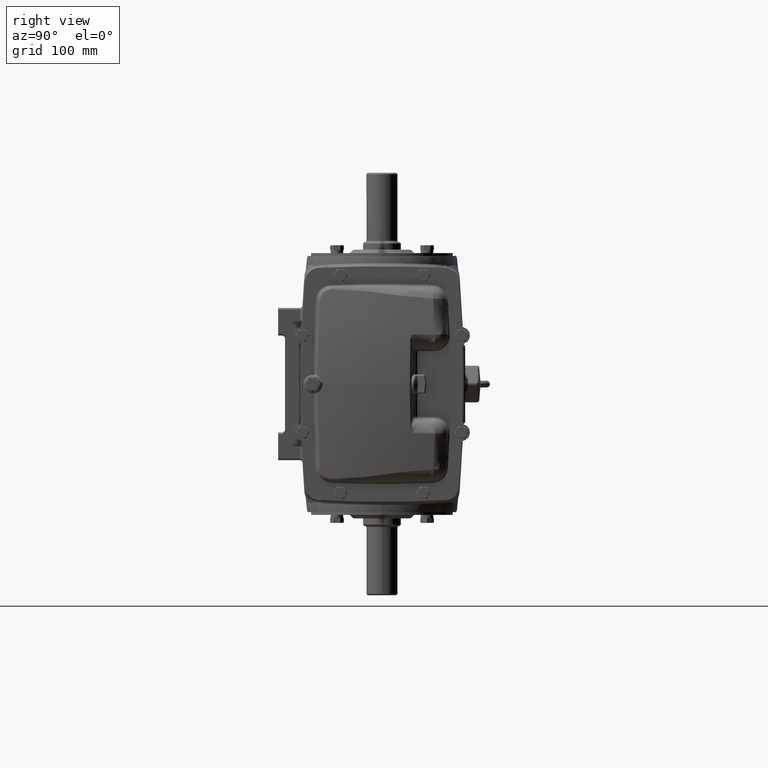
[diagram: clean part render]
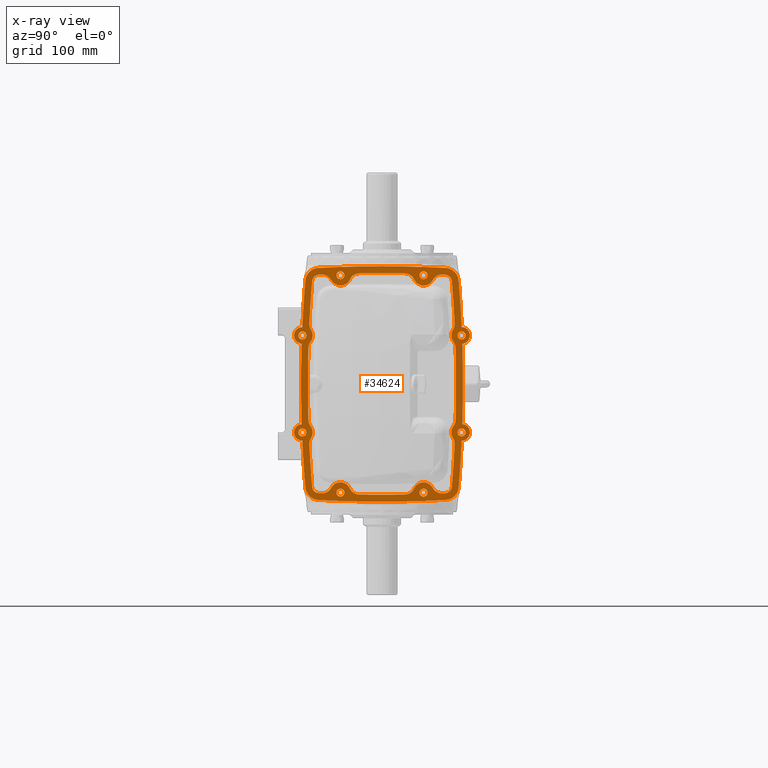
[diagram: x-ray — body ghosted, one internal face saturated and labeled with its STEP entity id]
A machine part, right view, then the same camera in x-ray: the body is ghosted and one INTERNAL B-rep face — a face not visible from any outside direction — is saturated and labeled: STEP entity #34624.
In plain terms, the highlighted planar face has unit normal (1, -0, 0).
Its self-contained STEP definition (entity closure, byte-faithful):
#27 = ORIENTED_EDGE ( 'NONE', *, *, #44993, .T. ) ;
#61 = CARTESIAN_POINT ( 'NONE',  ( -2.349973212028926284, -4.893640394660135229, -5.903390719813585541 ) ) ;
#141 = DIRECTION ( 'NONE',  ( 0.000000000000000000, 0.000000000000000000, 1.000000000000000000 ) ) ;
#180 = DIRECTION ( 'NONE',  ( -1.000000000000000000, 0.000000000000000000, 0.000000000000000000 ) ) ;
#468 = VERTEX_POINT ( 'NONE', #9747 ) ;
#662 = AXIS2_PLACEMENT_3D ( 'NONE', #1504, #26769, #46052 ) ;
#779 = DIRECTION ( 'NONE',  ( 0.000000000000000000, 0.000000000000000000, -1.000000000000000000 ) ) ;
#827 = DIRECTION ( 'NONE',  ( -1.000000000000000000, 0.000000000000000000, 0.000000000000000000 ) ) ;
#989 = DIRECTION ( 'NONE',  ( 0.000000000000000000, 0.000000000000000000, 1.000000000000000000 ) ) ;
#1076 = ORIENTED_EDGE ( 'NONE', *, *, #40332, .F. ) ;
#1139 = CARTESIAN_POINT ( 'NONE',  ( -2.349973212028926284, -12.30458259007020949, -2.755905511811023612 ) ) ;
#1306 = ORIENTED_EDGE ( 'NONE', *, *, #52176, .F. ) ;
#1442 = DIRECTION ( 'NONE',  ( 0.000000000000000000, 0.000000000000000000, -1.000000000000000000 ) ) ;
#1504 = CARTESIAN_POINT ( 'NONE',  ( -2.349973212028926284, -12.30458259007020949, 2.755905511811023612 ) ) ;
#1506 = CARTESIAN_POINT ( 'NONE',  ( -2.349973212028926284, -4.179633298406574937, 6.207335136765494532 ) ) ;
#1520 = CARTESIAN_POINT ( 'NONE',  ( -2.349973212028926284, -3.249464479833987340, 2.982283464566929165 ) ) ;
#1651 = VERTEX_POINT ( 'NONE', #9718 ) ;
#1666 = CIRCLE ( 'NONE', #14790, 0.7874015748031503170 ) ;
#1885 = DIRECTION ( 'NONE',  ( -1.000000000000000000, 0.000000000000000000, 0.000000000000000000 ) ) ;
#2229 = EDGE_LOOP ( 'NONE', ( #47946, #42956 ) ) ;
#2242 = FACE_BOUND ( 'NONE', #40239, .T. ) ;
#2355 = ORIENTED_EDGE ( 'NONE', *, *, #5531, .T. ) ;
#2405 = EDGE_CURVE ( 'NONE', #468, #48812, #33304, .T. ) ;
#2409 = DIRECTION ( 'NONE',  ( 0.000000000000000000, 0.000000000000000000, 1.000000000000000000 ) ) ;
#2502 = CARTESIAN_POINT ( 'NONE',  ( -2.349973212028926284, -6.492083706790011455, -5.696847126488341573 ) ) ;
#2506 = DIRECTION ( 'NONE',  ( 0.000000000000000000, 0.000000000000000000, -1.000000000000000000 ) ) ;
#2764 = DIRECTION ( 'NONE',  ( -1.000000000000000000, 0.000000000000000000, 0.000000000000000000 ) ) ;
#2775 = EDGE_CURVE ( 'NONE', #20836, #7420, #20182, .T. ) ;
#2889 = CARTESIAN_POINT ( 'NONE',  ( -2.349973212028926284, -4.159536146247139854, 6.600522642258368933 ) ) ;
#3084 = CARTESIAN_POINT ( 'NONE',  ( -2.349973212028926284, -7.777023534952098416, 64.17322834645669616 ) ) ;
#3294 = DIRECTION ( 'NONE',  ( 0.000000000000000000, 0.000000000000000000, 1.000000000000000000 ) ) ;
#3302 = AXIS2_PLACEMENT_3D ( 'NONE', #18930, #18019, #22465 ) ;
#3338 = ORIENTED_EDGE ( 'NONE', *, *, #19343, .T. ) ;
#3396 = EDGE_CURVE ( 'NONE', #45684, #9893, #26356, .T. ) ;
#3464 = CARTESIAN_POINT ( 'NONE',  ( -2.349973212028926284, -5.414818810542649352, -5.954724409448820310 ) ) ;
#3579 = DIRECTION ( 'NONE',  ( 0.000000000000000000, 0.000000000000000000, -1.000000000000000000 ) ) ;
#3598 = CARTESIAN_POINT ( 'NONE',  ( -2.349973212028926284, -3.249464479833987340, -2.755905511811023612 ) ) ;
#3810 = EDGE_CURVE ( 'NONE', #468, #29068, #58837, .T. ) ;
#3860 = DIRECTION ( 'NONE',  ( 0.000000000000000000, 0.000000000000000000, 1.000000000000000000 ) ) ;
#3912 = CARTESIAN_POINT ( 'NONE',  ( -2.349973212028926284, -12.30458259007020949, -2.982283464566929165 ) ) ;
#4021 = CARTESIAN_POINT ( 'NONE',  ( -2.349973212028926284, -10.13922825936154659, -6.181102362204723200 ) ) ;
#4058 = DIRECTION ( 'NONE',  ( 0.000000000000000000, 0.000000000000000000, -1.000000000000000000 ) ) ;
#4065 = CARTESIAN_POINT ( 'NONE',  ( -2.349973212028926284, -9.072822009549350142, 6.287298468513228933 ) ) ;
#4260 = DIRECTION ( 'NONE',  ( 0.000000000000000000, 0.000000000000000000, 1.000000000000000000 ) ) ;
#4369 = CARTESIAN_POINT ( 'NONE',  ( -2.349973212028926284, -3.249464479833987340, 2.755905511811023612 ) ) ;
#4414 = CIRCLE ( 'NONE', #20529, 0.5905511811023621549 ) ;
#4541 = EDGE_CURVE ( 'NONE', #52521, #16947, #60221, .T. ) ;
#4584 = DIRECTION ( 'NONE',  ( -1.000000000000000000, 0.000000000000000000, 0.000000000000000000 ) ) ;
#4640 = CARTESIAN_POINT ( 'NONE',  ( -2.349973212028926284, -11.74666007778795063, 5.846811382010109526 ) ) ;
#5025 = EDGE_CURVE ( 'NONE', #51042, #24903, #28933, .T. ) ;
#5028 = DIRECTION ( 'NONE',  ( -1.000000000000000000, 0.000000000000000000, 0.000000000000000000 ) ) ;
#5073 = CARTESIAN_POINT ( 'NONE',  ( -2.349973212028926284, -5.414818810542649352, -6.181102362204725864 ) ) ;
#5120 = DIRECTION ( 'NONE',  ( 0.000000000000000000, 0.000000000000000000, 1.000000000000000000 ) ) ;
#5174 = AXIS2_PLACEMENT_3D ( 'NONE', #18594, #42669, #37895 ) ;
#5232 = AXIS2_PLACEMENT_3D ( 'NONE', #23520, #28273, #47571 ) ;
#5252 = CARTESIAN_POINT ( 'NONE',  ( -2.349973212028926284, -10.13922825936154659, 6.181102362204723200 ) ) ;
#5340 = ORIENTED_EDGE ( 'NONE', *, *, #3396, .T. ) ;
#5449 = CARTESIAN_POINT ( 'NONE',  ( -2.349973212028926284, -74.03686605463714443, 0.000000000000000000 ) ) ;
#5531 = EDGE_CURVE ( 'NONE', #45166, #46570, #60264, .T. ) ;
#5706 = ORIENTED_EDGE ( 'NONE', *, *, #52638, .T. ) ;
#5742 = AXIS2_PLACEMENT_3D ( 'NONE', #49945, #25911, #41383 ) ;
#5805 = CIRCLE ( 'NONE', #21804, 0.7874015748031503170 ) ;
#5810 = CARTESIAN_POINT ( 'NONE',  ( -2.349973212028926284, -3.249464479833987340, 2.755905511811023612 ) ) ;
#5835 = DIRECTION ( 'NONE',  ( -1.000000000000000000, 0.000000000000000000, 0.000000000000000000 ) ) ;
#5837 = DIRECTION ( 'NONE',  ( 0.000000000000000000, 0.000000000000000000, 1.000000000000000000 ) ) ;
#5896 = AXIS2_PLACEMENT_3D ( 'NONE', #47261, #41883, #51385 ) ;
#6010 = DIRECTION ( 'NONE',  ( 0.000000000000000000, 0.000000000000000000, 1.000000000000000000 ) ) ;
#6034 = FACE_BOUND ( 'NONE', #50445, .T. ) ;
#6074 = DIRECTION ( 'NONE',  ( 0.000000000000000000, 0.000000000000000000, -1.000000000000000000 ) ) ;
#6168 = AXIS2_PLACEMENT_3D ( 'NONE', #8745, #52686, #38129 ) ;
#6298 = VERTEX_POINT ( 'NONE', #41831 ) ;
#6369 = EDGE_CURVE ( 'NONE', #16907, #23427, #10834, .T. ) ;
#6392 = CIRCLE ( 'NONE', #44763, 70.47244094488188182 ) ;
#6402 = DIRECTION ( 'NONE',  ( 1.000000000000000000, -0.000000000000000000, -0.000000000000000000 ) ) ;
#6451 = DIRECTION ( 'NONE',  ( 0.000000000000000000, 0.000000000000000000, -1.000000000000000000 ) ) ;
#6487 = CARTESIAN_POINT ( 'NONE',  ( -2.349973212028926284, -5.953451258666329515, 5.938974744346534607 ) ) ;
#6614 = AXIS2_PLACEMENT_3D ( 'NONE', #55607, #46442, #50869 ) ;
#6747 = DIRECTION ( 'NONE',  ( -1.000000000000000000, 0.000000000000000000, 0.000000000000000000 ) ) ;
#6873 = DIRECTION ( 'NONE',  ( 0.000000000000000000, 0.000000000000000000, 1.000000000000000000 ) ) ;
#6962 = DIRECTION ( 'NONE',  ( 1.000000000000000000, -0.000000000000000000, -0.000000000000000000 ) ) ;
#7041 = VERTEX_POINT ( 'NONE', #32157 ) ;
#7196 = DIRECTION ( 'NONE',  ( 0.000000000000000000, 0.000000000000000000, -1.000000000000000000 ) ) ;
#7272 = CARTESIAN_POINT ( 'NONE',  ( -2.349973212028926284, -5.414818810542649352, 6.181102362204725864 ) ) ;
#7420 = VERTEX_POINT ( 'NONE', #39212 ) ;
#7454 = CARTESIAN_POINT ( 'NONE',  ( -2.349973212028926284, -3.249464479833987340, -2.755905511811023612 ) ) ;
#7490 = DIRECTION ( 'NONE',  ( 0.000000000000000000, 0.000000000000000000, -1.000000000000000000 ) ) ;
#7516 = DIRECTION ( 'NONE',  ( -1.000000000000000000, 0.000000000000000000, 0.000000000000000000 ) ) ;
#7573 = CARTESIAN_POINT ( 'NONE',  ( -2.349973212028926284, -3.249464479833987340, -2.755905511811023612 ) ) ;
#7574 = ORIENTED_EDGE ( 'NONE', *, *, #12714, .T. ) ;
#7605 = AXIS2_PLACEMENT_3D ( 'NONE', #35404, #36042, #34788 ) ;
#7942 = ORIENTED_EDGE ( 'NONE', *, *, #44714, .T. ) ;
#7967 = CARTESIAN_POINT ( 'NONE',  ( -2.349973212028926284, -5.414818810542649352, -6.181102362204725864 ) ) ;
#8119 = DIRECTION ( 'NONE',  ( -1.000000000000000000, 0.000000000000000000, 0.000000000000000000 ) ) ;
#8181 = AXIS2_PLACEMENT_3D ( 'NONE', #12293, #26839, #2506 ) ;
#8198 = CIRCLE ( 'NONE', #5174, 0.3937007874015751585 ) ;
#8315 = CARTESIAN_POINT ( 'NONE',  ( -2.349973212028926284, -10.13922825936154659, -5.954724409448817646 ) ) ;
#8317 = EDGE_CURVE ( 'NONE', #9893, #45166, #43287, .T. ) ;
#8665 = CARTESIAN_POINT ( 'NONE',  ( -2.349973212028926284, -3.207583018110084616, 2.285324605308475476 ) ) ;
#8745 = CARTESIAN_POINT ( 'NONE',  ( -2.349973212028926284, -74.03686605463714443, 0.000000000000000000 ) ) ;
#8784 = CARTESIAN_POINT ( 'NONE',  ( -2.349973212028926284, -11.36945102235517169, -2.034426654831562598 ) ) ;
#8921 = VERTEX_POINT ( 'NONE', #41609 ) ;
#9001 = EDGE_CURVE ( 'NONE', #34047, #33876, #62509, .T. ) ;
#9118 = CIRCLE ( 'NONE', #44474, 0.2263779527559057203 ) ;
#9128 = CARTESIAN_POINT ( 'NONE',  ( -2.349973212028926284, -3.249464479833987340, -2.755905511811023612 ) ) ;
#9132 = DIRECTION ( 'NONE',  ( 0.000000000000000000, 0.000000000000000000, 1.000000000000000000 ) ) ;
#9190 = DIRECTION ( 'NONE',  ( 0.000000000000000000, 0.000000000000000000, -1.000000000000000000 ) ) ;
#9202 = ORIENTED_EDGE ( 'NONE', *, *, #27833, .F. ) ;
#9364 = EDGE_CURVE ( 'NONE', #30873, #19890, #26824, .T. ) ;
#9395 = DIRECTION ( 'NONE',  ( 0.000000000000000000, 0.000000000000000000, -1.000000000000000000 ) ) ;
#9627 = DIRECTION ( 'NONE',  ( 0.000000000000000000, 0.000000000000000000, 1.000000000000000000 ) ) ;
#9677 = AXIS2_PLACEMENT_3D ( 'NONE', #43075, #38919, #5120 ) ;
#9718 = CARTESIAN_POINT ( 'NONE',  ( -2.349973212028926284, -12.34646405179410600, -2.285324605308472812 ) ) ;
#9747 = CARTESIAN_POINT ( 'NONE',  ( -2.349973212028926284, -3.594295174249679370, 2.051618992759705939 ) ) ;
#9814 = ORIENTED_EDGE ( 'NONE', *, *, #33409, .T. ) ;
#9839 = EDGE_CURVE ( 'NONE', #17565, #27040, #45974, .T. ) ;
#9893 = VERTEX_POINT ( 'NONE', #44673 ) ;
#9901 = ORIENTED_EDGE ( 'NONE', *, *, #37198, .F. ) ;
#10095 = VERTEX_POINT ( 'NONE', #54302 ) ;
#10115 = CARTESIAN_POINT ( 'NONE',  ( -2.349973212028926284, -4.184596047549023368, 2.034426654831557268 ) ) ;
#10123 = VERTEX_POINT ( 'NONE', #1520 ) ;
#10131 = DIRECTION ( 'NONE',  ( 1.000000000000000000, -0.000000000000000000, -0.000000000000000000 ) ) ;
#10365 = EDGE_CURVE ( 'NONE', #58109, #42207, #52072, .T. ) ;
#10393 = AXIS2_PLACEMENT_3D ( 'NONE', #19394, #180, #32723 ) ;
#10603 = EDGE_CURVE ( 'NONE', #50341, #59695, #46024, .T. ) ;
#10770 = PLANE ( 'NONE',  #7605 ) ;
#10834 = CIRCLE ( 'NONE', #18876, 0.2263779527559057203 ) ;
#10873 = CARTESIAN_POINT ( 'NONE',  ( -2.349973212028926284, -4.199730450566083739, 5.814147631272645000 ) ) ;
#10926 = ORIENTED_EDGE ( 'NONE', *, *, #32286, .F. ) ;
#10981 = ORIENTED_EDGE ( 'NONE', *, *, #57846, .F. ) ;
#11061 = ORIENTED_EDGE ( 'NONE', *, *, #11146, .T. ) ;
#11116 = DIRECTION ( 'NONE',  ( 1.000000000000000000, -0.000000000000000000, -0.000000000000000000 ) ) ;
#11146 = EDGE_CURVE ( 'NONE', #33876, #50341, #23840, .T. ) ;
#11368 = DIRECTION ( 'NONE',  ( 0.000000000000000000, 0.000000000000000000, -1.000000000000000000 ) ) ;
#11388 = DIRECTION ( 'NONE',  ( 0.000000000000000000, 0.000000000000000000, -1.000000000000000000 ) ) ;
#11431 = CARTESIAN_POINT ( 'NONE',  ( -2.349973212028926284, -10.13922825936154659, -6.181102362204723200 ) ) ;
#11472 = CIRCLE ( 'NONE', #19533, 70.86614173228346658 ) ;
#11473 = DIRECTION ( 'NONE',  ( 0.000000000000000000, 0.000000000000000000, 1.000000000000000000 ) ) ;
#11516 = VERTEX_POINT ( 'NONE', #50151 ) ;
#11529 = AXIS2_PLACEMENT_3D ( 'NONE', #52952, #14694, #9627 ) ;
#11615 = AXIS2_PLACEMENT_3D ( 'NONE', #7573, #32532, #20916 ) ;
#11638 = CARTESIAN_POINT ( 'NONE',  ( -2.349973212028926284, -9.600595811237866428, -5.938974744346532830 ) ) ;
#11948 = EDGE_CURVE ( 'NONE', #57110, #36908, #1666, .T. ) ;
#12195 = DIRECTION ( 'NONE',  ( 0.000000000000000000, 0.000000000000000000, 1.000000000000000000 ) ) ;
#12293 = CARTESIAN_POINT ( 'NONE',  ( -2.349973212028926284, -12.30458259007020949, 2.755905511811023612 ) ) ;
#12352 = CIRCLE ( 'NONE', #45706, 0.2263779527559057203 ) ;
#12642 = ORIENTED_EDGE ( 'NONE', *, *, #41563, .T. ) ;
#12650 = AXIS2_PLACEMENT_3D ( 'NONE', #12859, #2764, #60606 ) ;
#12714 = EDGE_CURVE ( 'NONE', #10095, #33719, #5805, .T. ) ;
#12847 = CIRCLE ( 'NONE', #37081, 0.5905511811023615998 ) ;
#12859 = CARTESIAN_POINT ( 'NONE',  ( -2.349973212028926284, -10.13922825936154659, 6.181102362204723200 ) ) ;
#12925 = CIRCLE ( 'NONE', #44243, 70.86614173228346658 ) ;
#13139 = AXIS2_PLACEMENT_3D ( 'NONE', #10115, #49329, #25286 ) ;
#13418 = DIRECTION ( 'NONE',  ( 0.000000000000000000, 0.000000000000000000, -1.000000000000000000 ) ) ;
#13641 = DIRECTION ( 'NONE',  ( 1.000000000000000000, -0.000000000000000000, -0.000000000000000000 ) ) ;
#13750 = CARTESIAN_POINT ( 'NONE',  ( -2.349973212028926284, -11.39451092365704632, 6.600522642258369821 ) ) ;
#13837 = AXIS2_PLACEMENT_3D ( 'NONE', #7967, #59833, #3860 ) ;
#13871 = ORIENTED_EDGE ( 'NONE', *, *, #46717, .T. ) ;
#13895 = DIRECTION ( 'NONE',  ( 0.000000000000000000, 0.000000000000000000, 1.000000000000000000 ) ) ;
#13927 = CIRCLE ( 'NONE', #35111, 0.5905511811023621549 ) ;
#14161 = CARTESIAN_POINT ( 'NONE',  ( -2.349973212028926284, -5.414818810542649352, -6.407480314960631418 ) ) ;
#14316 = ORIENTED_EDGE ( 'NONE', *, *, #32725, .F. ) ;
#14320 = CIRCLE ( 'NONE', #39520, 0.2263779527559057203 ) ;
#14455 = EDGE_CURVE ( 'NONE', #38587, #46944, #24922, .T. ) ;
#14535 = CARTESIAN_POINT ( 'NONE',  ( -2.349973212028926284, 58.48281898473294405, 0.000000000000000000 ) ) ;
#14694 = DIRECTION ( 'NONE',  ( -1.000000000000000000, 0.000000000000000000, 0.000000000000000000 ) ) ;
#14790 = AXIS2_PLACEMENT_3D ( 'NONE', #10873, #15916, #6451 ) ;
#14839 = CARTESIAN_POINT ( 'NONE',  ( -2.349973212028926284, -12.34646405179410600, 2.285324605308472812 ) ) ;
#15344 = DIRECTION ( 'NONE',  ( 0.000000000000000000, 0.000000000000000000, 1.000000000000000000 ) ) ;
#15611 = ORIENTED_EDGE ( 'NONE', *, *, #16215, .F. ) ;
#15656 = DIRECTION ( 'NONE',  ( 0.000000000000000000, 0.000000000000000000, -1.000000000000000000 ) ) ;
#15757 = AXIS2_PLACEMENT_3D ( 'NONE', #27758, #40722, #50541 ) ;
#15819 = VERTEX_POINT ( 'NONE', #39752 ) ;
#15916 = DIRECTION ( 'NONE',  ( 1.000000000000000000, -0.000000000000000000, -0.000000000000000000 ) ) ;
#16023 = CARTESIAN_POINT ( 'NONE',  ( -2.349973212028926284, -3.249464479833987340, -2.982283464566929165 ) ) ;
#16031 = VERTEX_POINT ( 'NONE', #4640 ) ;
#16120 = FACE_BOUND ( 'NONE', #27551, .T. ) ;
#16151 = DIRECTION ( 'NONE',  ( 1.000000000000000000, -0.000000000000000000, -0.000000000000000000 ) ) ;
#16215 = EDGE_CURVE ( 'NONE', #61002, #21398, #19993, .T. ) ;
#16268 = EDGE_CURVE ( 'NONE', #32166, #34047, #54350, .T. ) ;
#16320 = CARTESIAN_POINT ( 'NONE',  ( -2.349973212028926284, -12.13900353623778550, 5.879475132747616684 ) ) ;
#16433 = AXIS2_PLACEMENT_3D ( 'NONE', #25381, #44049, #54458 ) ;
#16501 = CARTESIAN_POINT ( 'NONE',  ( -2.349973212028926284, -11.83701680621269148, -2.395166083321293993 ) ) ;
#16520 = CARTESIAN_POINT ( 'NONE',  ( -2.349973212028926284, -7.777023534952098416, 64.17322834645669616 ) ) ;
#16738 = DIRECTION ( 'NONE',  ( 1.000000000000000000, -0.000000000000000000, -0.000000000000000000 ) ) ;
#16830 = EDGE_CURVE ( 'NONE', #57419, #56349, #62485, .T. ) ;
#16859 = EDGE_LOOP ( 'NONE', ( #27, #38190 ) ) ;
#16907 = VERTEX_POINT ( 'NONE', #16023 ) ;
#16920 = CARTESIAN_POINT ( 'NONE',  ( -2.349973212028926284, -9.600595811237866428, 5.938974744346532830 ) ) ;
#16947 = VERTEX_POINT ( 'NONE', #27280 ) ;
#16994 = EDGE_CURVE ( 'NONE', #15819, #32166, #18009, .T. ) ;
#17015 = DIRECTION ( 'NONE',  ( 0.000000000000000000, 0.000000000000000000, 1.000000000000000000 ) ) ;
#17146 = CARTESIAN_POINT ( 'NONE',  ( -2.349973212028926284, -4.237857979002681574, 3.402497408455763317 ) ) ;
#17265 = CIRCLE ( 'NONE', #52623, 0.5905511811023615998 ) ;
#17360 = CARTESIAN_POINT ( 'NONE',  ( -2.349973212028926284, -11.81038584048586415, -3.079201460133389912 ) ) ;
#17373 = DIRECTION ( 'NONE',  ( 0.000000000000000000, 0.000000000000000000, -1.000000000000000000 ) ) ;
#17565 = VERTEX_POINT ( 'NONE', #44538 ) ;
#18009 = CIRCLE ( 'NONE', #61457, 0.5905511811023621549 ) ;
#18019 = DIRECTION ( 'NONE',  ( -1.000000000000000000, 0.000000000000000000, 0.000000000000000000 ) ) ;
#18170 = CIRCLE ( 'NONE', #21193, 70.86614173228345237 ) ;
#18351 = CARTESIAN_POINT ( 'NONE',  ( -2.349973212028926284, -7.777023534952098416, -64.17322834645669616 ) ) ;
#18455 = DIRECTION ( 'NONE',  ( 0.000000000000000000, 0.000000000000000000, -1.000000000000000000 ) ) ;
#18594 = CARTESIAN_POINT ( 'NONE',  ( -2.349973212028926284, -11.35431661933811398, 5.814147631272622796 ) ) ;
#18626 = CARTESIAN_POINT ( 'NONE',  ( -2.349973212028926284, -10.13922825936154659, -6.181102362204723200 ) ) ;
#18655 = DIRECTION ( 'NONE',  ( 0.000000000000000000, 0.000000000000000000, 1.000000000000000000 ) ) ;
#18671 = DIRECTION ( 'NONE',  ( -1.000000000000000000, 0.000000000000000000, 0.000000000000000000 ) ) ;
#18751 = CARTESIAN_POINT ( 'NONE',  ( -2.349973212028926284, -74.03686605463714443, 0.000000000000000000 ) ) ;
#18820 = CARTESIAN_POINT ( 'NONE',  ( -2.349973212028926284, -4.343691036049387222, -6.215528999314371639 ) ) ;
#18876 = AXIS2_PLACEMENT_3D ( 'NONE', #3598, #38314, #3294 ) ;
#18930 = CARTESIAN_POINT ( 'NONE',  ( -2.349973212028926284, -74.03686605463714443, 0.000000000000000000 ) ) ;
#19034 = AXIS2_PLACEMENT_3D ( 'NONE', #50816, #40047, #7490 ) ;
#19132 = DIRECTION ( 'NONE',  ( 0.000000000000000000, 0.000000000000000000, 1.000000000000000000 ) ) ;
#19293 = CARTESIAN_POINT ( 'NONE',  ( -2.349973212028926284, -3.244295782497976344, -3.228318182014460191 ) ) ;
#19343 = EDGE_CURVE ( 'NONE', #37320, #55618, #9118, .T. ) ;
#19394 = CARTESIAN_POINT ( 'NONE',  ( -2.349973212028926284, -4.184596047549023368, -2.034426654831557268 ) ) ;
#19533 = AXIS2_PLACEMENT_3D ( 'NONE', #35996, #59414, #17015 ) ;
#19746 = CARTESIAN_POINT ( 'NONE',  ( -2.349973212028926284, -7.777023534952098416, -64.17322834645669616 ) ) ;
#19890 = VERTEX_POINT ( 'NONE', #24032 ) ;
#19993 = CIRCLE ( 'NONE', #5896, 0.5905511811023583801 ) ;
#20063 = CARTESIAN_POINT ( 'NONE',  ( -2.349973212028926284, -11.21035603385481316, 6.215528999314378744 ) ) ;
#20068 = EDGE_CURVE ( 'NONE', #46944, #38587, #58643, .T. ) ;
#20166 = AXIS2_PLACEMENT_3D ( 'NONE', #18351, #61081, #9190 ) ;
#20182 = CIRCLE ( 'NONE', #26310, 70.47244094488186761 ) ;
#20207 = ORIENTED_EDGE ( 'NONE', *, *, #28930, .F. ) ;
#20529 = AXIS2_PLACEMENT_3D ( 'NONE', #22472, #28154, #28462 ) ;
#20575 = DIRECTION ( 'NONE',  ( 0.000000000000000000, 0.000000000000000000, -1.000000000000000000 ) ) ;
#20691 = DIRECTION ( 'NONE',  ( 1.000000000000000000, -0.000000000000000000, -0.000000000000000000 ) ) ;
#20779 = ORIENTED_EDGE ( 'NONE', *, *, #9839, .F. ) ;
#20836 = VERTEX_POINT ( 'NONE', #20063 ) ;
#20901 = DIRECTION ( 'NONE',  ( 0.000000000000000000, 0.000000000000000000, 1.000000000000000000 ) ) ;
#20916 = DIRECTION ( 'NONE',  ( 0.000000000000000000, 0.000000000000000000, 1.000000000000000000 ) ) ;
#20965 = DIRECTION ( 'NONE',  ( -1.000000000000000000, 0.000000000000000000, 0.000000000000000000 ) ) ;
#21149 = EDGE_CURVE ( 'NONE', #29477, #36105, #18170, .T. ) ;
#21193 = AXIS2_PLACEMENT_3D ( 'NONE', #55796, #37434, #13418 ) ;
#21398 = VERTEX_POINT ( 'NONE', #16501 ) ;
#21584 = CIRCLE ( 'NONE', #29687, 70.86614173228345237 ) ;
#21803 = ORIENTED_EDGE ( 'NONE', *, *, #16268, .T. ) ;
#21804 = AXIS2_PLACEMENT_3D ( 'NONE', #28003, #22936, #61209 ) ;
#21843 = DIRECTION ( 'NONE',  ( 1.000000000000000000, -0.000000000000000000, -0.000000000000000000 ) ) ;
#21911 = CARTESIAN_POINT ( 'NONE',  ( -2.349973212028926284, -11.74666007778795063, -5.846811382010109526 ) ) ;
#21998 = EDGE_CURVE ( 'NONE', #6298, #56681, #35421, .T. ) ;
#22465 = DIRECTION ( 'NONE',  ( 0.000000000000000000, 0.000000000000000000, 1.000000000000000000 ) ) ;
#22472 = CARTESIAN_POINT ( 'NONE',  ( -2.349973212028926284, -11.31618909090151348, -3.402497408455758876 ) ) ;
#22724 = CIRCLE ( 'NONE', #59061, 0.5905511811023583801 ) ;
#22817 = AXIS2_PLACEMENT_3D ( 'NONE', #25619, #6962, #11388 ) ;
#22844 = CARTESIAN_POINT ( 'NONE',  ( -2.349973212028926284, -6.481225060354839584, -6.287298468513228933 ) ) ;
#22936 = DIRECTION ( 'NONE',  ( -1.000000000000000000, 0.000000000000000000, 0.000000000000000000 ) ) ;
#23159 = CARTESIAN_POINT ( 'NONE',  ( -2.349973212028926284, -10.13922825936154659, 5.954724409448817646 ) ) ;
#23294 = CARTESIAN_POINT ( 'NONE',  ( -2.349973212028926284, -11.90603986337166376, -3.431250907682156903 ) ) ;
#23427 = VERTEX_POINT ( 'NONE', #27441 ) ;
#23520 = CARTESIAN_POINT ( 'NONE',  ( -2.349973212028926284, -4.199730450566057982, -5.814147631272622796 ) ) ;
#23572 = EDGE_CURVE ( 'NONE', #45012, #37311, #14320, .T. ) ;
#23840 = CIRCLE ( 'NONE', #22817, 70.47244094488186761 ) ;
#24032 = CARTESIAN_POINT ( 'NONE',  ( -2.349973212028926284, -10.66040667524405983, 5.903390719813582876 ) ) ;
#24049 = CIRCLE ( 'NONE', #62434, 0.5905511811023583801 ) ;
#24062 = ORIENTED_EDGE ( 'NONE', *, *, #59483, .F. ) ;
#24109 = AXIS2_PLACEMENT_3D ( 'NONE', #58393, #44163, #35590 ) ;
#24211 = DIRECTION ( 'NONE',  ( -1.000000000000000000, 0.000000000000000000, 0.000000000000000000 ) ) ;
#24283 = ORIENTED_EDGE ( 'NONE', *, *, #9364, .T. ) ;
#24314 = DIRECTION ( 'NONE',  ( 0.000000000000000000, 0.000000000000000000, -1.000000000000000000 ) ) ;
#24346 = DIRECTION ( 'NONE',  ( -1.000000000000000000, 0.000000000000000000, 0.000000000000000000 ) ) ;
#24647 = CIRCLE ( 'NONE', #47867, 0.5905511811023615998 ) ;
#24655 = CARTESIAN_POINT ( 'NONE',  ( -2.349973212028926284, -5.414818810542649352, 6.181102362204725864 ) ) ;
#24903 = VERTEX_POINT ( 'NONE', #14839 ) ;
#24922 = CIRCLE ( 'NONE', #13837, 0.2263779527559057203 ) ;
#25286 = DIRECTION ( 'NONE',  ( 0.000000000000000000, 0.000000000000000000, 1.000000000000000000 ) ) ;
#25365 = DIRECTION ( 'NONE',  ( 0.000000000000000000, 0.000000000000000000, 1.000000000000000000 ) ) ;
#25381 = CARTESIAN_POINT ( 'NONE',  ( -2.349973212028926284, -4.372461978777618441, -5.625679077422444330 ) ) ;
#25556 = ORIENTED_EDGE ( 'NONE', *, *, #39168, .F. ) ;
#25619 = CARTESIAN_POINT ( 'NONE',  ( -2.349973212028926284, -7.777023534952098416, -64.17322834645669616 ) ) ;
#25623 = FACE_BOUND ( 'NONE', #38504, .T. ) ;
#25766 = VERTEX_POINT ( 'NONE', #23294 ) ;
#25786 = EDGE_CURVE ( 'NONE', #8921, #46570, #37645, .T. ) ;
#25795 = CIRCLE ( 'NONE', #54046, 0.4724409448818896462 ) ;
#25797 = EDGE_CURVE ( 'NONE', #29068, #17565, #41711, .T. ) ;
#25911 = DIRECTION ( 'NONE',  ( 1.000000000000000000, -0.000000000000000000, -0.000000000000000000 ) ) ;
#25991 = CARTESIAN_POINT ( 'NONE',  ( -2.349973212028926284, 58.48281898473294405, 0.000000000000000000 ) ) ;
#26094 = VERTEX_POINT ( 'NONE', #8315 ) ;
#26107 = CARTESIAN_POINT ( 'NONE',  ( -2.349973212028926284, -12.30458259007020949, -2.755905511811023612 ) ) ;
#26186 = ORIENTED_EDGE ( 'NONE', *, *, #49493, .T. ) ;
#26197 = CARTESIAN_POINT ( 'NONE',  ( -2.349973212028926284, -11.21035603385481316, -6.215528999314378744 ) ) ;
#26260 = VERTEX_POINT ( 'NONE', #41434 ) ;
#26310 = AXIS2_PLACEMENT_3D ( 'NONE', #19746, #49184, #1442 ) ;
#26356 = CIRCLE ( 'NONE', #42521, 0.5905511811023621549 ) ;
#26437 = CIRCLE ( 'NONE', #31472, 70.47244094488186761 ) ;
#26520 = CIRCLE ( 'NONE', #40623, 0.2263779527559057203 ) ;
#26769 = DIRECTION ( 'NONE',  ( 1.000000000000000000, -0.000000000000000000, -0.000000000000000000 ) ) ;
#26824 = CIRCLE ( 'NONE', #12650, 0.5905511811023583801 ) ;
#26839 = DIRECTION ( 'NONE',  ( 1.000000000000000000, -0.000000000000000000, -0.000000000000000000 ) ) ;
#26922 = CIRCLE ( 'NONE', #46153, 70.86614173228346658 ) ;
#26968 = AXIS2_PLACEMENT_3D ( 'NONE', #4369, #5835, #4058 ) ;
#27040 = VERTEX_POINT ( 'NONE', #55448 ) ;
#27214 = CARTESIAN_POINT ( 'NONE',  ( -2.349973212028926284, -12.30458259007020949, 2.755905511811023612 ) ) ;
#27280 = CARTESIAN_POINT ( 'NONE',  ( -2.349973212028926284, -10.66040667524405983, -5.903390719813582876 ) ) ;
#27441 = CARTESIAN_POINT ( 'NONE',  ( -2.349973212028926284, -3.249464479833987340, -2.529527559055117614 ) ) ;
#27551 = EDGE_LOOP ( 'NONE', ( #59777, #34175 ) ) ;
#27758 = CARTESIAN_POINT ( 'NONE',  ( -2.349973212028926284, -11.18158509112657839, -5.625679077422441665 ) ) ;
#27772 = AXIS2_PLACEMENT_3D ( 'NONE', #50509, #32151, #7196 ) ;
#27833 = EDGE_CURVE ( 'NONE', #21398, #8921, #38511, .T. ) ;
#27866 = ORIENTED_EDGE ( 'NONE', *, *, #32982, .T. ) ;
#27900 = DIRECTION ( 'NONE',  ( 0.000000000000000000, 0.000000000000000000, -1.000000000000000000 ) ) ;
#27930 = DIRECTION ( 'NONE',  ( 1.000000000000000000, -0.000000000000000000, -0.000000000000000000 ) ) ;
#27947 = ORIENTED_EDGE ( 'NONE', *, *, #39756, .T. ) ;
#27976 = CARTESIAN_POINT ( 'NONE',  ( -2.349973212028926284, -5.414818810542649352, 6.181102362204725864 ) ) ;
#28003 = CARTESIAN_POINT ( 'NONE',  ( -2.349973212028926284, -4.199730450566083739, -5.814147631272645000 ) ) ;
#28054 = VERTEX_POINT ( 'NONE', #16320 ) ;
#28154 = DIRECTION ( 'NONE',  ( -1.000000000000000000, 0.000000000000000000, 0.000000000000000000 ) ) ;
#28208 = VERTEX_POINT ( 'NONE', #39567 ) ;
#28273 = DIRECTION ( 'NONE',  ( -1.000000000000000000, 0.000000000000000000, 0.000000000000000000 ) ) ;
#28462 = DIRECTION ( 'NONE',  ( 0.000000000000000000, 0.000000000000000000, -1.000000000000000000 ) ) ;
#28580 = AXIS2_PLACEMENT_3D ( 'NONE', #62437, #4584, #28605 ) ;
#28605 = DIRECTION ( 'NONE',  ( 0.000000000000000000, 0.000000000000000000, 1.000000000000000000 ) ) ;
#28654 = CARTESIAN_POINT ( 'NONE',  ( -2.349973212028926284, -11.37441377149757393, -6.207335136765503414 ) ) ;
#28930 = EDGE_CURVE ( 'NONE', #11516, #43345, #53597, .T. ) ;
#28933 = CIRCLE ( 'NONE', #662, 0.4724409448818896462 ) ;
#29024 = VERTEX_POINT ( 'NONE', #39207 ) ;
#29055 = CARTESIAN_POINT ( 'NONE',  ( -2.349973212028926284, -7.777023534952098416, 64.17322834645669616 ) ) ;
#29068 = VERTEX_POINT ( 'NONE', #44609 ) ;
#29098 = ORIENTED_EDGE ( 'NONE', *, *, #16994, .T. ) ;
#29233 = DIRECTION ( 'NONE',  ( 0.000000000000000000, 0.000000000000000000, 1.000000000000000000 ) ) ;
#29327 = EDGE_CURVE ( 'NONE', #7420, #16031, #8198, .T. ) ;
#29367 = AXIS2_PLACEMENT_3D ( 'NONE', #4021, #24211, #19132 ) ;
#29429 = CARTESIAN_POINT ( 'NONE',  ( -2.349973212028926284, 58.48281898473294405, 0.000000000000000000 ) ) ;
#29477 = VERTEX_POINT ( 'NONE', #42974 ) ;
#29610 = CARTESIAN_POINT ( 'NONE',  ( -2.349973212028926284, -11.18158509112657839, 5.625679077422441665 ) ) ;
#29651 = EDGE_CURVE ( 'NONE', #59137, #7041, #44577, .T. ) ;
#29687 = AXIS2_PLACEMENT_3D ( 'NONE', #39938, #20965, #5837 ) ;
#29900 = CIRCLE ( 'NONE', #46072, 70.86614173228346658 ) ;
#30120 = AXIS2_PLACEMENT_3D ( 'NONE', #29055, #5028, #9132 ) ;
#30142 = AXIS2_PLACEMENT_3D ( 'NONE', #27214, #55675, #45561 ) ;
#30211 = EDGE_CURVE ( 'NONE', #52586, #43782, #26437, .T. ) ;
#30588 = ORIENTED_EDGE ( 'NONE', *, *, #16830, .F. ) ;
#30608 = DIRECTION ( 'NONE',  ( -1.000000000000000000, 0.000000000000000000, 0.000000000000000000 ) ) ;
#30647 = AXIS2_PLACEMENT_3D ( 'NONE', #18626, #37326, #32587 ) ;
#30873 = VERTEX_POINT ( 'NONE', #16920 ) ;
#30878 = EDGE_CURVE ( 'NONE', #23427, #16907, #12352, .T. ) ;
#31006 = AXIS2_PLACEMENT_3D ( 'NONE', #25991, #6402, #25365 ) ;
#31015 = CARTESIAN_POINT ( 'NONE',  ( -2.349973212028926284, -10.13922825936154659, 6.181102362204723200 ) ) ;
#31238 = VERTEX_POINT ( 'NONE', #22844 ) ;
#31294 = FACE_OUTER_BOUND ( 'NONE', #51147, .T. ) ;
#31385 = ORIENTED_EDGE ( 'NONE', *, *, #61603, .F. ) ;
#31472 = AXIS2_PLACEMENT_3D ( 'NONE', #40234, #6747, #11473 ) ;
#31490 = ORIENTED_EDGE ( 'NONE', *, *, #23572, .F. ) ;
#31917 = ORIENTED_EDGE ( 'NONE', *, *, #20068, .F. ) ;
#31918 = AXIS2_PLACEMENT_3D ( 'NONE', #62080, #52902, #141 ) ;
#32010 = DIRECTION ( 'NONE',  ( 1.000000000000000000, -0.000000000000000000, -0.000000000000000000 ) ) ;
#32108 = CARTESIAN_POINT ( 'NONE',  ( -2.349973212028926284, -3.648007206532530411, 3.431250907682149798 ) ) ;
#32151 = DIRECTION ( 'NONE',  ( 1.000000000000000000, -0.000000000000000000, -0.000000000000000000 ) ) ;
#32157 = CARTESIAN_POINT ( 'NONE',  ( -2.349973212028926284, -12.13900353623778550, -5.879475132747616684 ) ) ;
#32163 = CARTESIAN_POINT ( 'NONE',  ( -2.349973212028926284, -11.35431661933811398, -5.814147631272645000 ) ) ;
#32166 = VERTEX_POINT ( 'NONE', #32108 ) ;
#32191 = CARTESIAN_POINT ( 'NONE',  ( -2.349973212028926284, -3.244295782497976344, 3.228318182014460191 ) ) ;
#32286 = EDGE_CURVE ( 'NONE', #49601, #25766, #6392, .T. ) ;
#32526 = CARTESIAN_POINT ( 'NONE',  ( -2.349973212028926284, -12.30975128740623070, 3.228318182014415783 ) ) ;
#32532 = DIRECTION ( 'NONE',  ( 1.000000000000000000, -0.000000000000000000, -0.000000000000000000 ) ) ;
#32587 = DIRECTION ( 'NONE',  ( 0.000000000000000000, 0.000000000000000000, 1.000000000000000000 ) ) ;
#32657 = EDGE_CURVE ( 'NONE', #25766, #61002, #4414, .T. ) ;
#32723 = DIRECTION ( 'NONE',  ( 0.000000000000000000, 0.000000000000000000, -1.000000000000000000 ) ) ;
#32725 = EDGE_CURVE ( 'NONE', #26094, #26260, #50852, .T. ) ;
#32821 = AXIS2_PLACEMENT_3D ( 'NONE', #9128, #57203, #13895 ) ;
#32848 = ORIENTED_EDGE ( 'NONE', *, *, #35532, .T. ) ;
#32982 = EDGE_CURVE ( 'NONE', #44440, #10095, #11472, .T. ) ;
#33221 = EDGE_LOOP ( 'NONE', ( #61628, #31917 ) ) ;
#33304 = CIRCLE ( 'NONE', #13139, 0.5905511811023624880 ) ;
#33409 = EDGE_CURVE ( 'NONE', #56422, #30873, #24647, .T. ) ;
#33413 = AXIS2_PLACEMENT_3D ( 'NONE', #5073, #24346, #6010 ) ;
#33487 = ORIENTED_EDGE ( 'NONE', *, *, #51434, .T. ) ;
#33719 = VERTEX_POINT ( 'NONE', #35457 ) ;
#33876 = VERTEX_POINT ( 'NONE', #1506 ) ;
#33950 = CIRCLE ( 'NONE', #27772, 70.86614173228345237 ) ;
#34047 = VERTEX_POINT ( 'NONE', #48870 ) ;
#34096 = CIRCLE ( 'NONE', #51264, 70.86614173228346658 ) ;
#34103 = ORIENTED_EDGE ( 'NONE', *, *, #11948, .F. ) ;
#34175 = ORIENTED_EDGE ( 'NONE', *, *, #53402, .T. ) ;
#34332 = EDGE_CURVE ( 'NONE', #55618, #37320, #61047, .T. ) ;
#34566 = AXIS2_PLACEMENT_3D ( 'NONE', #27976, #42520, #18455 ) ;
#34624 = ADVANCED_FACE ( 'NONE', ( #31294, #2242, #25623, #39828, #59138, #6034, #16120, #59456, #40774, #58841 ), #10770, .F. ) ;
#34700 = ORIENTED_EDGE ( 'NONE', *, *, #56276, .F. ) ;
#34788 = DIRECTION ( 'NONE',  ( 0.000000000000000000, 0.000000000000000000, -1.000000000000000000 ) ) ;
#34823 = EDGE_CURVE ( 'NONE', #49738, #44440, #60097, .T. ) ;
#34901 = CIRCLE ( 'NONE', #52119, 70.47244094488188182 ) ;
#35111 = AXIS2_PLACEMENT_3D ( 'NONE', #58522, #18671, #42751 ) ;
#35150 = ORIENTED_EDGE ( 'NONE', *, *, #5025, .F. ) ;
#35177 = CARTESIAN_POINT ( 'NONE',  ( -2.349973212028926284, -11.83701680621269148, 2.395166083321293993 ) ) ;
#35281 = EDGE_CURVE ( 'NONE', #10123, #42822, #35878, .T. ) ;
#35351 = CARTESIAN_POINT ( 'NONE',  ( -2.349973212028926284, -74.03686605463714443, 0.000000000000000000 ) ) ;
#35381 = ORIENTED_EDGE ( 'NONE', *, *, #25797, .F. ) ;
#35404 = CARTESIAN_POINT ( 'NONE',  ( -2.349973212028926284, 58.48281898473294405, 0.000000000000000000 ) ) ;
#35421 = CIRCLE ( 'NONE', #8181, 0.2263779527559057203 ) ;
#35457 = CARTESIAN_POINT ( 'NONE',  ( -2.349973212028926284, -4.159536146247139854, -6.600522642258368933 ) ) ;
#35532 = EDGE_CURVE ( 'NONE', #42822, #10123, #44974, .T. ) ;
#35538 = AXIS2_PLACEMENT_3D ( 'NONE', #36469, #27930, #56407 ) ;
#35590 = DIRECTION ( 'NONE',  ( 0.000000000000000000, 0.000000000000000000, -1.000000000000000000 ) ) ;
#35803 = DIRECTION ( 'NONE',  ( -1.000000000000000000, 0.000000000000000000, 0.000000000000000000 ) ) ;
#35878 = CIRCLE ( 'NONE', #39928, 0.2263779527559057203 ) ;
#35888 = AXIS2_PLACEMENT_3D ( 'NONE', #43126, #56438, #4260 ) ;
#35996 = CARTESIAN_POINT ( 'NONE',  ( -2.349973212028926284, -74.03686605463714443, 0.000000000000000000 ) ) ;
#36042 = DIRECTION ( 'NONE',  ( 1.000000000000000000, -0.000000000000000000, 0.000000000000000000 ) ) ;
#36105 = VERTEX_POINT ( 'NONE', #13750 ) ;
#36406 = ORIENTED_EDGE ( 'NONE', *, *, #4541, .F. ) ;
#36469 = CARTESIAN_POINT ( 'NONE',  ( -2.349973212028926284, -6.492083706790011455, 5.696847126488341573 ) ) ;
#36766 = CIRCLE ( 'NONE', #11529, 0.3937007874015751585 ) ;
#36908 = VERTEX_POINT ( 'NONE', #2889 ) ;
#37081 = AXIS2_PLACEMENT_3D ( 'NONE', #2502, #1885, #49922 ) ;
#37198 = EDGE_CURVE ( 'NONE', #36908, #29477, #33950, .T. ) ;
#37311 = VERTEX_POINT ( 'NONE', #3912 ) ;
#37320 = VERTEX_POINT ( 'NONE', #23159 ) ;
#37326 = DIRECTION ( 'NONE',  ( -1.000000000000000000, 0.000000000000000000, 0.000000000000000000 ) ) ;
#37378 = DIRECTION ( 'NONE',  ( 1.000000000000000000, -0.000000000000000000, -0.000000000000000000 ) ) ;
#37434 = DIRECTION ( 'NONE',  ( 1.000000000000000000, -0.000000000000000000, -0.000000000000000000 ) ) ;
#37645 = CIRCLE ( 'NONE', #28580, 70.47244094488188182 ) ;
#37736 = CARTESIAN_POINT ( 'NONE',  ( -2.349973212028926284, -3.717030263691504910, 2.395166083321290884 ) ) ;
#37895 = DIRECTION ( 'NONE',  ( 0.000000000000000000, 0.000000000000000000, -1.000000000000000000 ) ) ;
#37973 = CIRCLE ( 'NONE', #15757, 0.5905511811023615998 ) ;
#38064 = DIRECTION ( 'NONE',  ( 1.000000000000000000, -0.000000000000000000, -0.000000000000000000 ) ) ;
#38129 = DIRECTION ( 'NONE',  ( 0.000000000000000000, 0.000000000000000000, 1.000000000000000000 ) ) ;
#38186 = AXIS2_PLACEMENT_3D ( 'NONE', #18751, #38064, #57368 ) ;
#38190 = ORIENTED_EDGE ( 'NONE', *, *, #61958, .T. ) ;
#38314 = DIRECTION ( 'NONE',  ( -1.000000000000000000, 0.000000000000000000, 0.000000000000000000 ) ) ;
#38321 = CIRCLE ( 'NONE', #20166, 70.47244094488188182 ) ;
#38398 = CARTESIAN_POINT ( 'NONE',  ( -2.349973212028926284, 58.48281898473294405, 0.000000000000000000 ) ) ;
#38440 = CARTESIAN_POINT ( 'NONE',  ( -2.349973212028926284, -9.072822009549350142, -6.287298468513228933 ) ) ;
#38504 = EDGE_LOOP ( 'NONE', ( #14316, #40628 ) ) ;
#38511 = CIRCLE ( 'NONE', #50677, 0.5905511811023621549 ) ;
#38557 = ORIENTED_EDGE ( 'NONE', *, *, #25786, .F. ) ;
#38587 = VERTEX_POINT ( 'NONE', #3464 ) ;
#38616 = ORIENTED_EDGE ( 'NONE', *, *, #2775, .T. ) ;
#38919 = DIRECTION ( 'NONE',  ( -1.000000000000000000, 0.000000000000000000, 0.000000000000000000 ) ) ;
#39168 = EDGE_CURVE ( 'NONE', #36105, #28054, #59172, .T. ) ;
#39207 = CARTESIAN_POINT ( 'NONE',  ( -2.349973212028926284, -7.777023534952098416, -6.692913385826751771 ) ) ;
#39212 = CARTESIAN_POINT ( 'NONE',  ( -2.349973212028926284, -11.37441377149757393, 6.207335136765503414 ) ) ;
#39520 = AXIS2_PLACEMENT_3D ( 'NONE', #26107, #60252, #2409 ) ;
#39550 = VERTEX_POINT ( 'NONE', #61 ) ;
#39567 = CARTESIAN_POINT ( 'NONE',  ( -2.349973212028926284, -5.414818810542649352, 6.407480314960631418 ) ) ;
#39619 = CIRCLE ( 'NONE', #16433, 0.5905511811023615998 ) ;
#39635 = DIRECTION ( 'NONE',  ( -1.000000000000000000, 0.000000000000000000, 0.000000000000000000 ) ) ;
#39752 = CARTESIAN_POINT ( 'NONE',  ( -2.349973212028926284, -3.743661229418334013, 3.079201460133393464 ) ) ;
#39756 = EDGE_CURVE ( 'NONE', #7041, #56540, #26922, .T. ) ;
#39794 = EDGE_CURVE ( 'NONE', #48812, #15819, #44111, .T. ) ;
#39828 = FACE_BOUND ( 'NONE', #33221, .T. ) ;
#39928 = AXIS2_PLACEMENT_3D ( 'NONE', #5810, #48826, #779 ) ;
#39938 = CARTESIAN_POINT ( 'NONE',  ( -2.349973212028926284, -7.777023534952098416, 64.17322834645669616 ) ) ;
#40047 = DIRECTION ( 'NONE',  ( 1.000000000000000000, -0.000000000000000000, -0.000000000000000000 ) ) ;
#40234 = CARTESIAN_POINT ( 'NONE',  ( -2.349973212028926284, -7.777023534952098416, 64.17322834645669616 ) ) ;
#40239 = EDGE_LOOP ( 'NONE', ( #31490, #1306 ) ) ;
#40269 = DIRECTION ( 'NONE',  ( 1.000000000000000000, -0.000000000000000000, -0.000000000000000000 ) ) ;
#40332 = EDGE_CURVE ( 'NONE', #28054, #51042, #47185, .T. ) ;
#40558 = ORIENTED_EDGE ( 'NONE', *, *, #9001, .T. ) ;
#40623 = AXIS2_PLACEMENT_3D ( 'NONE', #7272, #16738, #17373 ) ;
#40628 = ORIENTED_EDGE ( 'NONE', *, *, #43793, .F. ) ;
#40722 = DIRECTION ( 'NONE',  ( -1.000000000000000000, 0.000000000000000000, 0.000000000000000000 ) ) ;
#40774 = FACE_BOUND ( 'NONE', #16859, .T. ) ;
#40947 = CIRCLE ( 'NONE', #9677, 0.2263779527559057203 ) ;
#41383 = DIRECTION ( 'NONE',  ( 0.000000000000000000, 0.000000000000000000, -1.000000000000000000 ) ) ;
#41434 = CARTESIAN_POINT ( 'NONE',  ( -2.349973212028926284, -10.13922825936154659, -6.407480314960629642 ) ) ;
#41557 = EDGE_CURVE ( 'NONE', #39550, #55966, #24049, .T. ) ;
#41561 = CIRCLE ( 'NONE', #43548, 70.47244094488188182 ) ;
#41563 = EDGE_CURVE ( 'NONE', #1651, #24903, #12925, .T. ) ;
#41609 = CARTESIAN_POINT ( 'NONE',  ( -2.349973212028926284, -11.95975189565450947, -2.051618992759716598 ) ) ;
#41711 = CIRCLE ( 'NONE', #10393, 0.5905511811023624880 ) ;
#41831 = CARTESIAN_POINT ( 'NONE',  ( -2.349973212028926284, -12.30458259007020949, 2.529527559055117614 ) ) ;
#41883 = DIRECTION ( 'NONE',  ( 1.000000000000000000, -0.000000000000000000, -0.000000000000000000 ) ) ;
#41998 = DIRECTION ( 'NONE',  ( -1.000000000000000000, 0.000000000000000000, 0.000000000000000000 ) ) ;
#42207 = VERTEX_POINT ( 'NONE', #18820 ) ;
#42342 = AXIS2_PLACEMENT_3D ( 'NONE', #58567, #49713, #20901 ) ;
#42520 = DIRECTION ( 'NONE',  ( 1.000000000000000000, -0.000000000000000000, -0.000000000000000000 ) ) ;
#42521 = AXIS2_PLACEMENT_3D ( 'NONE', #46240, #13641, #18655 ) ;
#42545 = AXIS2_PLACEMENT_3D ( 'NONE', #32163, #7516, #51462 ) ;
#42643 = ORIENTED_EDGE ( 'NONE', *, *, #2405, .T. ) ;
#42669 = DIRECTION ( 'NONE',  ( 1.000000000000000000, -0.000000000000000000, -0.000000000000000000 ) ) ;
#42751 = DIRECTION ( 'NONE',  ( 0.000000000000000000, 0.000000000000000000, 1.000000000000000000 ) ) ;
#42779 = CARTESIAN_POINT ( 'NONE',  ( -2.349973212028926284, -5.953451258666329515, -5.938974744346534607 ) ) ;
#42822 = VERTEX_POINT ( 'NONE', #47411 ) ;
#42864 = CARTESIAN_POINT ( 'NONE',  ( -2.349973212028926284, -5.414818810542649352, 5.954724409448820310 ) ) ;
#42956 = ORIENTED_EDGE ( 'NONE', *, *, #6369, .F. ) ;
#42974 = CARTESIAN_POINT ( 'NONE',  ( -2.349973212028926284, -7.777023534952098416, 6.692913385826751771 ) ) ;
#43075 = CARTESIAN_POINT ( 'NONE',  ( -2.349973212028926284, -12.30458259007020949, -2.755905511811023612 ) ) ;
#43109 = VERTEX_POINT ( 'NONE', #6487 ) ;
#43126 = CARTESIAN_POINT ( 'NONE',  ( -2.349973212028926284, -4.372461978777618441, 5.625679077422444330 ) ) ;
#43287 = CIRCLE ( 'NONE', #30142, 0.5905511811023583801 ) ;
#43345 = VERTEX_POINT ( 'NONE', #52304 ) ;
#43548 = AXIS2_PLACEMENT_3D ( 'NONE', #16520, #35803, #55108 ) ;
#43782 = VERTEX_POINT ( 'NONE', #28654 ) ;
#43793 = EDGE_CURVE ( 'NONE', #26260, #26094, #58612, .T. ) ;
#43811 = VERTEX_POINT ( 'NONE', #38440 ) ;
#44049 = DIRECTION ( 'NONE',  ( -1.000000000000000000, 0.000000000000000000, 0.000000000000000000 ) ) ;
#44053 = EDGE_CURVE ( 'NONE', #43345, #58109, #56751, .T. ) ;
#44077 = ORIENTED_EDGE ( 'NONE', *, *, #10365, .F. ) ;
#44111 = CIRCLE ( 'NONE', #26968, 0.5905511811023611557 ) ;
#44146 = ORIENTED_EDGE ( 'NONE', *, *, #50851, .T. ) ;
#44163 = DIRECTION ( 'NONE',  ( -1.000000000000000000, 0.000000000000000000, 0.000000000000000000 ) ) ;
#44243 = AXIS2_PLACEMENT_3D ( 'NONE', #29429, #53768, #48731 ) ;
#44415 = DIRECTION ( 'NONE',  ( 0.000000000000000000, 0.000000000000000000, 1.000000000000000000 ) ) ;
#44440 = VERTEX_POINT ( 'NONE', #19293 ) ;
#44474 = AXIS2_PLACEMENT_3D ( 'NONE', #31015, #16151, #20575 ) ;
#44538 = CARTESIAN_POINT ( 'NONE',  ( -2.349973212028926284, -3.717030263691504910, -2.395166083321290884 ) ) ;
#44577 = CIRCLE ( 'NONE', #42545, 0.7874015748031503170 ) ;
#44609 = CARTESIAN_POINT ( 'NONE',  ( -2.349973212028926284, -3.594295174249679370, -2.051618992759705939 ) ) ;
#44673 = CARTESIAN_POINT ( 'NONE',  ( -2.349973212028926284, -11.81038584048586415, 3.079201460133389912 ) ) ;
#44714 = EDGE_CURVE ( 'NONE', #19890, #20836, #17265, .T. ) ;
#44763 = AXIS2_PLACEMENT_3D ( 'NONE', #38398, #57085, #29233 ) ;
#44778 = DIRECTION ( 'NONE',  ( 1.000000000000000000, -0.000000000000000000, -0.000000000000000000 ) ) ;
#44937 = ORIENTED_EDGE ( 'NONE', *, *, #29651, .T. ) ;
#44974 = CIRCLE ( 'NONE', #60142, 0.2263779527559057203 ) ;
#44993 = EDGE_CURVE ( 'NONE', #50409, #28208, #60852, .T. ) ;
#45012 = VERTEX_POINT ( 'NONE', #54167 ) ;
#45166 = VERTEX_POINT ( 'NONE', #35177 ) ;
#45174 = DIRECTION ( 'NONE',  ( 0.000000000000000000, 0.000000000000000000, 1.000000000000000000 ) ) ;
#45345 = EDGE_CURVE ( 'NONE', #31238, #43811, #41561, .T. ) ;
#45561 = DIRECTION ( 'NONE',  ( 0.000000000000000000, 0.000000000000000000, -1.000000000000000000 ) ) ;
#45684 = VERTEX_POINT ( 'NONE', #59783 ) ;
#45706 = AXIS2_PLACEMENT_3D ( 'NONE', #7454, #55513, #12195 ) ;
#45822 = CARTESIAN_POINT ( 'NONE',  ( -2.349973212028926284, -3.415043533666406450, 5.879475132747624677 ) ) ;
#45974 = CIRCLE ( 'NONE', #11615, 0.5905511811023611557 ) ;
#46024 = CIRCLE ( 'NONE', #35888, 0.5905511811023615998 ) ;
#46052 = DIRECTION ( 'NONE',  ( 0.000000000000000000, 0.000000000000000000, -1.000000000000000000 ) ) ;
#46072 = AXIS2_PLACEMENT_3D ( 'NONE', #35351, #30608, #45174 ) ;
#46153 = AXIS2_PLACEMENT_3D ( 'NONE', #61900, #39635, #9395 ) ;
#46240 = CARTESIAN_POINT ( 'NONE',  ( -2.349973212028926284, -11.31618909090151348, 3.402497408455758876 ) ) ;
#46442 = DIRECTION ( 'NONE',  ( 1.000000000000000000, -0.000000000000000000, -0.000000000000000000 ) ) ;
#46472 = ORIENTED_EDGE ( 'NONE', *, *, #45345, .F. ) ;
#46570 = VERTEX_POINT ( 'NONE', #50396 ) ;
#46664 = CARTESIAN_POINT ( 'NONE',  ( -2.349973212028926284, -4.893640394660135229, 5.903390719813585541 ) ) ;
#46717 = EDGE_CURVE ( 'NONE', #43109, #57925, #49741, .T. ) ;
#46944 = VERTEX_POINT ( 'NONE', #14161 ) ;
#47185 = CIRCLE ( 'NONE', #31006, 70.86614173228346658 ) ;
#47261 = CARTESIAN_POINT ( 'NONE',  ( -2.349973212028926284, -12.30458259007020949, -2.755905511811023612 ) ) ;
#47302 = CARTESIAN_POINT ( 'NONE',  ( -2.349973212028926284, -4.343691036049387222, 6.215528999314371639 ) ) ;
#47411 = CARTESIAN_POINT ( 'NONE',  ( -2.349973212028926284, -3.249464479833987340, 2.529527559055117614 ) ) ;
#47571 = DIRECTION ( 'NONE',  ( 0.000000000000000000, 0.000000000000000000, -1.000000000000000000 ) ) ;
#47809 = CARTESIAN_POINT ( 'NONE',  ( -2.349973212028926284, -3.249464479833987340, 2.755905511811023612 ) ) ;
#47867 = AXIS2_PLACEMENT_3D ( 'NONE', #50085, #40269, #44415 ) ;
#47946 = ORIENTED_EDGE ( 'NONE', *, *, #30878, .F. ) ;
#48125 = AXIS2_PLACEMENT_3D ( 'NONE', #11431, #21843, #59500 ) ;
#48324 = CIRCLE ( 'NONE', #30120, 70.86614173228345237 ) ;
#48731 = DIRECTION ( 'NONE',  ( 0.000000000000000000, 0.000000000000000000, -1.000000000000000000 ) ) ;
#48780 = ORIENTED_EDGE ( 'NONE', *, *, #34823, .T. ) ;
#48812 = VERTEX_POINT ( 'NONE', #37736 ) ;
#48826 = DIRECTION ( 'NONE',  ( 1.000000000000000000, -0.000000000000000000, -0.000000000000000000 ) ) ;
#48852 = ORIENTED_EDGE ( 'NONE', *, *, #56869, .F. ) ;
#48870 = CARTESIAN_POINT ( 'NONE',  ( -2.349973212028926284, -3.807386992116227553, 5.846811382010106861 ) ) ;
#49026 = ORIENTED_EDGE ( 'NONE', *, *, #21149, .F. ) ;
#49049 = AXIS2_PLACEMENT_3D ( 'NONE', #3084, #8119, #6873 ) ;
#49147 = CIRCLE ( 'NONE', #6614, 0.2263779527559057203 ) ;
#49184 = DIRECTION ( 'NONE',  ( 1.000000000000000000, -0.000000000000000000, -0.000000000000000000 ) ) ;
#49329 = DIRECTION ( 'NONE',  ( 1.000000000000000000, -0.000000000000000000, -0.000000000000000000 ) ) ;
#49378 = EDGE_CURVE ( 'NONE', #43782, #49601, #36766, .T. ) ;
#49493 = EDGE_CURVE ( 'NONE', #33719, #29024, #21584, .T. ) ;
#49601 = VERTEX_POINT ( 'NONE', #21911 ) ;
#49656 = ORIENTED_EDGE ( 'NONE', *, *, #52706, .F. ) ;
#49713 = DIRECTION ( 'NONE',  ( 1.000000000000000000, -0.000000000000000000, -0.000000000000000000 ) ) ;
#49738 = VERTEX_POINT ( 'NONE', #56084 ) ;
#49741 = CIRCLE ( 'NONE', #35538, 0.5905511811023615998 ) ;
#49922 = DIRECTION ( 'NONE',  ( 0.000000000000000000, 0.000000000000000000, 1.000000000000000000 ) ) ;
#49936 = AXIS2_PLACEMENT_3D ( 'NONE', #5252, #20691, #15656 ) ;
#49945 = CARTESIAN_POINT ( 'NONE',  ( -2.349973212028926284, -11.36945102235517169, 2.034426654831562598 ) ) ;
#50085 = CARTESIAN_POINT ( 'NONE',  ( -2.349973212028926284, -9.061963363114184489, 5.696847126488339796 ) ) ;
#50151 = CARTESIAN_POINT ( 'NONE',  ( -2.349973212028926284, -3.648007206532530411, -3.431250907682149798 ) ) ;
#50278 = ORIENTED_EDGE ( 'NONE', *, *, #39794, .T. ) ;
#50341 = VERTEX_POINT ( 'NONE', #47302 ) ;
#50396 = CARTESIAN_POINT ( 'NONE',  ( -2.349973212028926284, -11.95975189565450947, 2.051618992759716598 ) ) ;
#50409 = VERTEX_POINT ( 'NONE', #42864 ) ;
#50445 = EDGE_LOOP ( 'NONE', ( #35381, #52646, #42643, #50278, #29098, #21803, #40558, #11061, #54602, #44146, #13871, #61736, #9814, #24283, #7942, #38616, #54442, #60446, #5340, #55558, #2355, #38557, #9202, #15611, #56321, #10926, #62280, #52987, #49656, #36406, #24062, #46472, #34700, #50899, #31385, #44077, #53625, #20207, #10981, #20779 ) ) ;
#50509 = CARTESIAN_POINT ( 'NONE',  ( -2.349973212028926284, -7.777023534952098416, -64.17322834645669616 ) ) ;
#50523 = ORIENTED_EDGE ( 'NONE', *, *, #34332, .T. ) ;
#50541 = DIRECTION ( 'NONE',  ( 0.000000000000000000, 0.000000000000000000, 1.000000000000000000 ) ) ;
#50677 = AXIS2_PLACEMENT_3D ( 'NONE', #8784, #41998, #52422 ) ;
#50816 = CARTESIAN_POINT ( 'NONE',  ( -2.349973212028926284, -3.249464479833987340, 2.755905511811023612 ) ) ;
#50851 = EDGE_CURVE ( 'NONE', #59695, #43109, #22724, .T. ) ;
#50852 = CIRCLE ( 'NONE', #30647, 0.2263779527559057203 ) ;
#50869 = DIRECTION ( 'NONE',  ( 0.000000000000000000, 0.000000000000000000, -1.000000000000000000 ) ) ;
#50899 = ORIENTED_EDGE ( 'NONE', *, *, #41557, .F. ) ;
#51042 = VERTEX_POINT ( 'NONE', #32526 ) ;
#51147 = EDGE_LOOP ( 'NONE', ( #30588, #5706, #48780, #27866, #7574, #26186, #52664, #44937, #27947, #33487, #12642, #35150, #1076, #25556, #49026, #9901, #34103, #48852 ) ) ;
#51264 = AXIS2_PLACEMENT_3D ( 'NONE', #5449, #11116, #6074 ) ;
#51385 = DIRECTION ( 'NONE',  ( 0.000000000000000000, 0.000000000000000000, 1.000000000000000000 ) ) ;
#51395 = CIRCLE ( 'NONE', #24109, 0.5905511811023615998 ) ;
#51434 = EDGE_CURVE ( 'NONE', #56540, #1651, #25795, .T. ) ;
#51462 = DIRECTION ( 'NONE',  ( 0.000000000000000000, 0.000000000000000000, -1.000000000000000000 ) ) ;
#51517 = EDGE_LOOP ( 'NONE', ( #3338, #50523 ) ) ;
#52072 = CIRCLE ( 'NONE', #49049, 70.47244094488186761 ) ;
#52119 = AXIS2_PLACEMENT_3D ( 'NONE', #14535, #53098, #24314 ) ;
#52176 = EDGE_CURVE ( 'NONE', #37311, #45012, #40947, .T. ) ;
#52304 = CARTESIAN_POINT ( 'NONE',  ( -2.349973212028926284, -3.807386992116227553, -5.846811382010106861 ) ) ;
#52414 = EDGE_CURVE ( 'NONE', #16031, #45684, #34901, .T. ) ;
#52422 = DIRECTION ( 'NONE',  ( 0.000000000000000000, 0.000000000000000000, 1.000000000000000000 ) ) ;
#52521 = VERTEX_POINT ( 'NONE', #11638 ) ;
#52586 = VERTEX_POINT ( 'NONE', #26197 ) ;
#52623 = AXIS2_PLACEMENT_3D ( 'NONE', #29610, #44778, #58686 ) ;
#52638 = EDGE_CURVE ( 'NONE', #57419, #49738, #29900, .T. ) ;
#52646 = ORIENTED_EDGE ( 'NONE', *, *, #3810, .F. ) ;
#52664 = ORIENTED_EDGE ( 'NONE', *, *, #58189, .T. ) ;
#52686 = DIRECTION ( 'NONE',  ( -1.000000000000000000, 0.000000000000000000, 0.000000000000000000 ) ) ;
#52706 = EDGE_CURVE ( 'NONE', #16947, #52586, #37973, .T. ) ;
#52902 = DIRECTION ( 'NONE',  ( 1.000000000000000000, -0.000000000000000000, -0.000000000000000000 ) ) ;
#52952 = CARTESIAN_POINT ( 'NONE',  ( -2.349973212028926284, -11.35431661933811398, -5.814147631272622796 ) ) ;
#52987 = ORIENTED_EDGE ( 'NONE', *, *, #30211, .F. ) ;
#53098 = DIRECTION ( 'NONE',  ( 1.000000000000000000, -0.000000000000000000, -0.000000000000000000 ) ) ;
#53149 = CARTESIAN_POINT ( 'NONE',  ( -2.349973212028926284, -5.414818810542649352, -6.181102362204725864 ) ) ;
#53402 = EDGE_CURVE ( 'NONE', #56681, #6298, #49147, .T. ) ;
#53597 = CIRCLE ( 'NONE', #6168, 70.47244094488189603 ) ;
#53625 = ORIENTED_EDGE ( 'NONE', *, *, #44053, .F. ) ;
#53768 = DIRECTION ( 'NONE',  ( -1.000000000000000000, 0.000000000000000000, 0.000000000000000000 ) ) ;
#54046 = AXIS2_PLACEMENT_3D ( 'NONE', #1139, #827, #15344 ) ;
#54167 = CARTESIAN_POINT ( 'NONE',  ( -2.349973212028926284, -12.30458259007020949, -2.529527559055117614 ) ) ;
#54302 = CARTESIAN_POINT ( 'NONE',  ( -2.349973212028926284, -3.415043533666406450, -5.879475132747624677 ) ) ;
#54350 = CIRCLE ( 'NONE', #38186, 70.47244094488189603 ) ;
#54369 = DIRECTION ( 'NONE',  ( -1.000000000000000000, 0.000000000000000000, 0.000000000000000000 ) ) ;
#54394 = CARTESIAN_POINT ( 'NONE',  ( -2.349973212028926284, -6.481225060354839584, 6.287298468513228933 ) ) ;
#54442 = ORIENTED_EDGE ( 'NONE', *, *, #29327, .T. ) ;
#54458 = DIRECTION ( 'NONE',  ( 0.000000000000000000, 0.000000000000000000, -1.000000000000000000 ) ) ;
#54602 = ORIENTED_EDGE ( 'NONE', *, *, #10603, .T. ) ;
#55108 = DIRECTION ( 'NONE',  ( 0.000000000000000000, 0.000000000000000000, 1.000000000000000000 ) ) ;
#55448 = CARTESIAN_POINT ( 'NONE',  ( -2.349973212028926284, -3.743661229418334013, -3.079201460133393464 ) ) ;
#55513 = DIRECTION ( 'NONE',  ( -1.000000000000000000, 0.000000000000000000, 0.000000000000000000 ) ) ;
#55558 = ORIENTED_EDGE ( 'NONE', *, *, #8317, .T. ) ;
#55607 = CARTESIAN_POINT ( 'NONE',  ( -2.349973212028926284, -12.30458259007020949, 2.755905511811023612 ) ) ;
#55618 = VERTEX_POINT ( 'NONE', #58015 ) ;
#55675 = DIRECTION ( 'NONE',  ( -1.000000000000000000, 0.000000000000000000, 0.000000000000000000 ) ) ;
#55796 = CARTESIAN_POINT ( 'NONE',  ( -2.349973212028926284, -7.777023534952098416, -64.17322834645669616 ) ) ;
#55966 = VERTEX_POINT ( 'NONE', #42779 ) ;
#56084 = CARTESIAN_POINT ( 'NONE',  ( -2.349973212028926284, -3.207583018110084616, -2.285324605308475476 ) ) ;
#56276 = EDGE_CURVE ( 'NONE', #55966, #31238, #12847, .T. ) ;
#56321 = ORIENTED_EDGE ( 'NONE', *, *, #32657, .F. ) ;
#56349 = VERTEX_POINT ( 'NONE', #32191 ) ;
#56407 = DIRECTION ( 'NONE',  ( 0.000000000000000000, 0.000000000000000000, -1.000000000000000000 ) ) ;
#56409 = CARTESIAN_POINT ( 'NONE',  ( -2.349973212028926284, -12.30458259007020949, 2.982283464566929165 ) ) ;
#56422 = VERTEX_POINT ( 'NONE', #4065 ) ;
#56438 = DIRECTION ( 'NONE',  ( 1.000000000000000000, -0.000000000000000000, -0.000000000000000000 ) ) ;
#56540 = VERTEX_POINT ( 'NONE', #58950 ) ;
#56681 = VERTEX_POINT ( 'NONE', #56409 ) ;
#56751 = CIRCLE ( 'NONE', #5232, 0.3937007874015751585 ) ;
#56869 = EDGE_CURVE ( 'NONE', #56349, #57110, #34096, .T. ) ;
#57085 = DIRECTION ( 'NONE',  ( -1.000000000000000000, 0.000000000000000000, 0.000000000000000000 ) ) ;
#57110 = VERTEX_POINT ( 'NONE', #45822 ) ;
#57203 = DIRECTION ( 'NONE',  ( -1.000000000000000000, 0.000000000000000000, 0.000000000000000000 ) ) ;
#57368 = DIRECTION ( 'NONE',  ( 0.000000000000000000, 0.000000000000000000, -1.000000000000000000 ) ) ;
#57419 = VERTEX_POINT ( 'NONE', #8665 ) ;
#57846 = EDGE_CURVE ( 'NONE', #27040, #11516, #13927, .T. ) ;
#57925 = VERTEX_POINT ( 'NONE', #54394 ) ;
#58015 = CARTESIAN_POINT ( 'NONE',  ( -2.349973212028926284, -10.13922825936154659, 6.407480314960629642 ) ) ;
#58109 = VERTEX_POINT ( 'NONE', #60086 ) ;
#58189 = EDGE_CURVE ( 'NONE', #29024, #59137, #48324, .T. ) ;
#58393 = CARTESIAN_POINT ( 'NONE',  ( -2.349973212028926284, -9.061963363114184489, -5.696847126488339796 ) ) ;
#58511 = EDGE_LOOP ( 'NONE', ( #32848, #61179 ) ) ;
#58522 = CARTESIAN_POINT ( 'NONE',  ( -2.349973212028926284, -4.237857979002681574, -3.402497408455763317 ) ) ;
#58567 = CARTESIAN_POINT ( 'NONE',  ( -2.349973212028926284, -4.199730450566057982, 5.814147631272622796 ) ) ;
#58612 = CIRCLE ( 'NONE', #29367, 0.2263779527559057203 ) ;
#58643 = CIRCLE ( 'NONE', #33413, 0.2263779527559057203 ) ;
#58686 = DIRECTION ( 'NONE',  ( 0.000000000000000000, 0.000000000000000000, -1.000000000000000000 ) ) ;
#58837 = CIRCLE ( 'NONE', #3302, 70.47244094488188182 ) ;
#58841 = FACE_BOUND ( 'NONE', #58511, .T. ) ;
#58950 = CARTESIAN_POINT ( 'NONE',  ( -2.349973212028926284, -12.30975128740623070, -3.228318182014415783 ) ) ;
#59061 = AXIS2_PLACEMENT_3D ( 'NONE', #24655, #54369, #11368 ) ;
#59137 = VERTEX_POINT ( 'NONE', #61343 ) ;
#59138 = FACE_BOUND ( 'NONE', #2229, .T. ) ;
#59172 = CIRCLE ( 'NONE', #31918, 0.7874015748031503170 ) ;
#59414 = DIRECTION ( 'NONE',  ( -1.000000000000000000, 0.000000000000000000, 0.000000000000000000 ) ) ;
#59456 = FACE_BOUND ( 'NONE', #51517, .T. ) ;
#59483 = EDGE_CURVE ( 'NONE', #43811, #52521, #51395, .T. ) ;
#59500 = DIRECTION ( 'NONE',  ( 0.000000000000000000, 0.000000000000000000, 1.000000000000000000 ) ) ;
#59695 = VERTEX_POINT ( 'NONE', #46664 ) ;
#59777 = ORIENTED_EDGE ( 'NONE', *, *, #21998, .T. ) ;
#59783 = CARTESIAN_POINT ( 'NONE',  ( -2.349973212028926284, -11.90603986337166376, 3.431250907682156903 ) ) ;
#59833 = DIRECTION ( 'NONE',  ( -1.000000000000000000, 0.000000000000000000, 0.000000000000000000 ) ) ;
#60086 = CARTESIAN_POINT ( 'NONE',  ( -2.349973212028926284, -4.179633298406574937, -6.207335136765494532 ) ) ;
#60097 = CIRCLE ( 'NONE', #32821, 0.4724409448818896462 ) ;
#60142 = AXIS2_PLACEMENT_3D ( 'NONE', #47809, #37378, #27900 ) ;
#60221 = CIRCLE ( 'NONE', #48125, 0.5905511811023583801 ) ;
#60252 = DIRECTION ( 'NONE',  ( -1.000000000000000000, 0.000000000000000000, 0.000000000000000000 ) ) ;
#60264 = CIRCLE ( 'NONE', #5742, 0.5905511811023621549 ) ;
#60446 = ORIENTED_EDGE ( 'NONE', *, *, #52414, .T. ) ;
#60606 = DIRECTION ( 'NONE',  ( 0.000000000000000000, 0.000000000000000000, -1.000000000000000000 ) ) ;
#60716 = EDGE_CURVE ( 'NONE', #57925, #56422, #38321, .T. ) ;
#60852 = CIRCLE ( 'NONE', #34566, 0.2263779527559057203 ) ;
#61002 = VERTEX_POINT ( 'NONE', #17360 ) ;
#61047 = CIRCLE ( 'NONE', #49936, 0.2263779527559057203 ) ;
#61081 = DIRECTION ( 'NONE',  ( 1.000000000000000000, -0.000000000000000000, -0.000000000000000000 ) ) ;
#61179 = ORIENTED_EDGE ( 'NONE', *, *, #35281, .T. ) ;
#61209 = DIRECTION ( 'NONE',  ( 0.000000000000000000, 0.000000000000000000, 1.000000000000000000 ) ) ;
#61343 = CARTESIAN_POINT ( 'NONE',  ( -2.349973212028926284, -11.39451092365704632, -6.600522642258369821 ) ) ;
#61457 = AXIS2_PLACEMENT_3D ( 'NONE', #17146, #32010, #3579 ) ;
#61603 = EDGE_CURVE ( 'NONE', #42207, #39550, #39619, .T. ) ;
#61628 = ORIENTED_EDGE ( 'NONE', *, *, #14455, .F. ) ;
#61736 = ORIENTED_EDGE ( 'NONE', *, *, #60716, .T. ) ;
#61900 = CARTESIAN_POINT ( 'NONE',  ( -2.349973212028926284, 58.48281898473294405, 0.000000000000000000 ) ) ;
#61958 = EDGE_CURVE ( 'NONE', #28208, #50409, #26520, .T. ) ;
#62080 = CARTESIAN_POINT ( 'NONE',  ( -2.349973212028926284, -11.35431661933811398, 5.814147631272645000 ) ) ;
#62280 = ORIENTED_EDGE ( 'NONE', *, *, #49378, .F. ) ;
#62434 = AXIS2_PLACEMENT_3D ( 'NONE', #53149, #10131, #989 ) ;
#62437 = CARTESIAN_POINT ( 'NONE',  ( -2.349973212028926284, 58.48281898473294405, 0.000000000000000000 ) ) ;
#62485 = CIRCLE ( 'NONE', #19034, 0.4724409448818896462 ) ;
#62509 = CIRCLE ( 'NONE', #42342, 0.3937007874015751585 ) ;